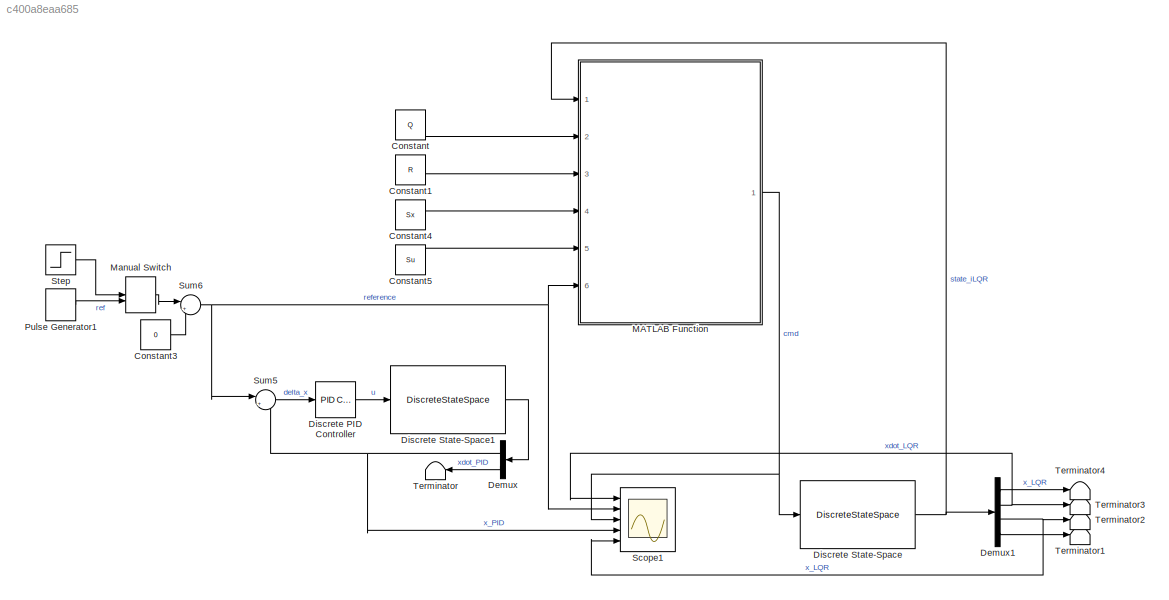
MODEL slx_c400a8eaa685
KIND model
CONFIG AbsTol = auto
CONFIG EnableMultiTasking = off
CONFIG FixedStep = 0.001
CONFIG MaxStep = 0.01
CONFIG MinStep = auto
CONFIG RelTol = 1e-3
CONFIG SampleTimeConstraint = Unconstrained
CONFIG SolverName = FixedStepDiscrete
CONFIG StartTime = 0.0
CONFIG StopTime = 100
BLOCK [Constant] Constant
  Value = Q
BLOCK [Constant] Constant1
  Value = R
BLOCK [Constant] Constant3
  Value = 0
BLOCK [Constant] Constant4
  Value = Sx
BLOCK [Constant] Constant5
  Value = Su
BLOCK [Demux] Demux
  Outputs = 2
  Ports = [1, 2]
BLOCK [Demux] Demux1
  Ports = [1, 4]
BLOCK [Reference] Discrete PID Controller  REF=pid_lib/PID Controller
  Ports = [1, 1]
  SourceBlock = pid_lib/PID Controller
  SourceProductBaseCode = SL
  SourceType = PID 1dof
BLOCK [DiscreteStateSpace] Discrete State-Space
  A = A_e
  B = B_e
  C = C_e
  D = D_e
  SampleTime = -1
BLOCK [DiscreteStateSpace] Discrete State-Space1
  A = Ad
  B = Bd
  C = Cd
  D = Dd
  SampleTime = -1
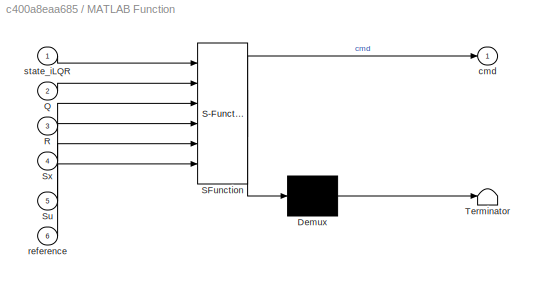
BLOCK [SubSystem] MATLAB Function
  ErrorFcn = Stateflow.Translate.translate
  PermitHierarchicalResolution = ExplicitOnly
  Ports = [6, 1]
  RequestExecContextInheritance = off
  SFBlockType = MATLAB Function
  TreatAsAtomicUnit = on
BLOCK [Demux] MATLAB Function/ Demux 
  Outputs = 1
  Ports = [1, 1]
BLOCK [S-Function] MATLAB Function/ SFunction 
  EnableBusSupport = on
  FunctionName = sf_sfun
  PortCounts = [6 2]
  Ports = [6, 2]
  SFcnIsStateOwnerBlock = off
  SFunctionDeploymentMode = off
  Tag = Stateflow S-Function 2
BLOCK [Terminator] MATLAB Function/ Terminator 
BLOCK [Inport] MATLAB Function/Q
  Port = 2
BLOCK [Inport] MATLAB Function/R
  Port = 3
BLOCK [Inport] MATLAB Function/Su
  Port = 5
BLOCK [Inport] MATLAB Function/Sx
  Port = 4
BLOCK [Outport] MATLAB Function/cmd
BLOCK [Inport] MATLAB Function/reference
  Port = 6
BLOCK [Inport] MATLAB Function/state_iLQR
BLOCK [ManualSwitch] Manual Switch
BLOCK [DiscretePulseGenerator] Pulse Generator1
  Period = 20
  Ports = [0, 1]
  PulseType = Time based
  PulseWidth = 50
BLOCK [Scope] Scope1
  Floating = off
  NumInputPorts = 5
  Ports = [5]
  ScopeSpecificationString = Simulink.scopes.TimeScopeBlockCfg('CurrentConfiguration', extmgr.ConfigurationSet(extmgr.Configuration('Core','General UI',true),extmgr.Configuration('Core','Source UI',true),extmgr.Configuration('Sources','WiredSimulink',true,'DataLoggingVariableName','ScopeData1'),extmgr.Configuration('Visuals','Time Domain',true,'SerializedDisplays',{struct('MinYLimReal','-0.36901','MaxYLimReal','1.22926','YLab...<+1624ch>
BLOCK [Step] Step
  SampleTime = 0
BLOCK [Sum] Sum5
  Inputs = |+-
  Ports = [2, 1]
BLOCK [Sum] Sum6
  Inputs = |++
  Ports = [2, 1]
BLOCK [Terminator] Terminator
BLOCK [Terminator] Terminator1
BLOCK [Terminator] Terminator2
BLOCK [Terminator] Terminator3
BLOCK [Terminator] Terminator4
LINE Constant1:1 -> MATLAB Function:3
LINE Constant3:1 -> Sum6:2
LINE Constant4:1 -> MATLAB Function:4
LINE Constant5:1 -> MATLAB Function:5
LINE Constant:1 -> MATLAB Function:2
LINE Demux1:1 -> Terminator4:1
NET Demux1:2 -> Scope1:1, Terminator3:1
NET Demux1:3 -> Scope1:5, Terminator2:1
LINE Demux1:4 -> Terminator1:1
NET Demux:1 -> Scope1:4, Sum5:2
LINE Demux:2 -> Terminator:1
LINE Discrete PID Controller:1 -> Discrete State-Space1:1
LINE Discrete State-Space1:1 -> Demux:1
NET Discrete State-Space:1 -> Demux1:1, MATLAB Function:1
NET MATLAB Function:1 -> Discrete State-Space:1, Scope1:3
LINE Manual Switch:1 -> Sum6:1
LINE Pulse Generator1:1 -> Manual Switch:2
LINE Step:1 -> Manual Switch:1
LINE Sum5:1 -> Discrete PID Controller:1
NET Sum6:1 -> MATLAB Function:6, Scope1:2, Sum5:1
note: NET lines group one-source signal fan-out (src -> all destinations, sorted); 1:1 wires keep LINE
CHART MATLAB Function states=1 transitions=1
  STATE_LABEL 'eML_blk_kernel()'
  STATE_LABEL "SCRIPT:\nfunction cmd = fcn(state_iLQR, Q, R,  Sx, Su, reference)\n\n\n\nx_e = [state_iLQR];\nMu = ones(20,1)*reference;\ncmd_e = (Su'*Q*Su+R)\\Su'*Q*(Mu-Sx*x_e);\ncmd = [cmd_e(1:2)];\n\nend"
CHART  states=0 transitions=0
